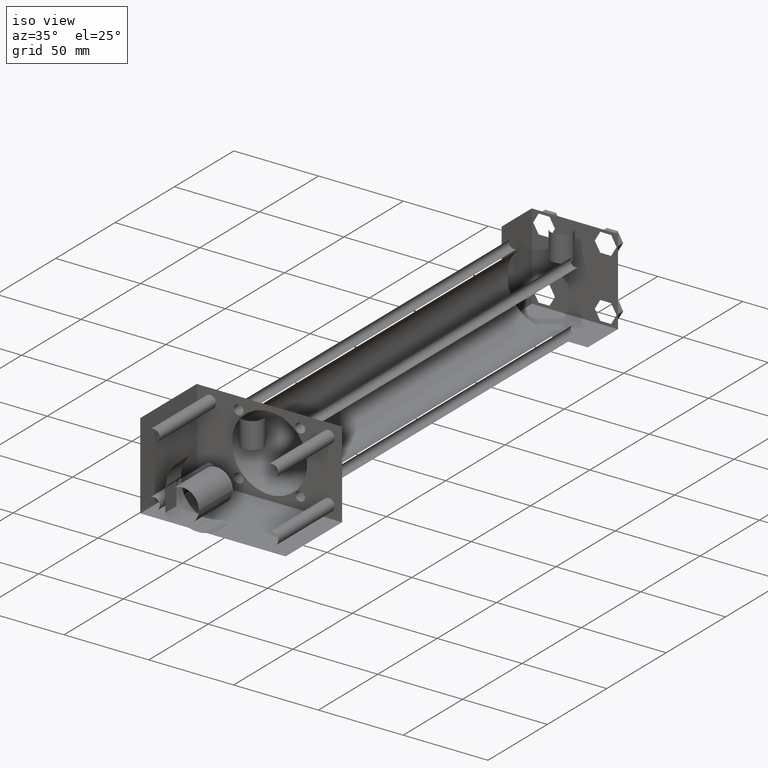
[diagram: clean part render]
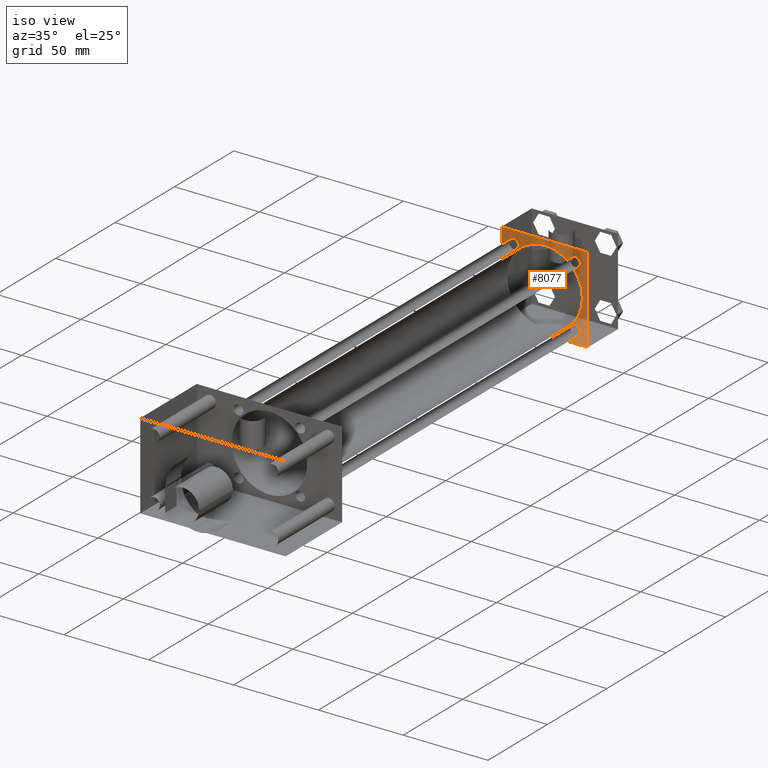
[diagram: same view with one face highlighted and labeled with its STEP entity id]
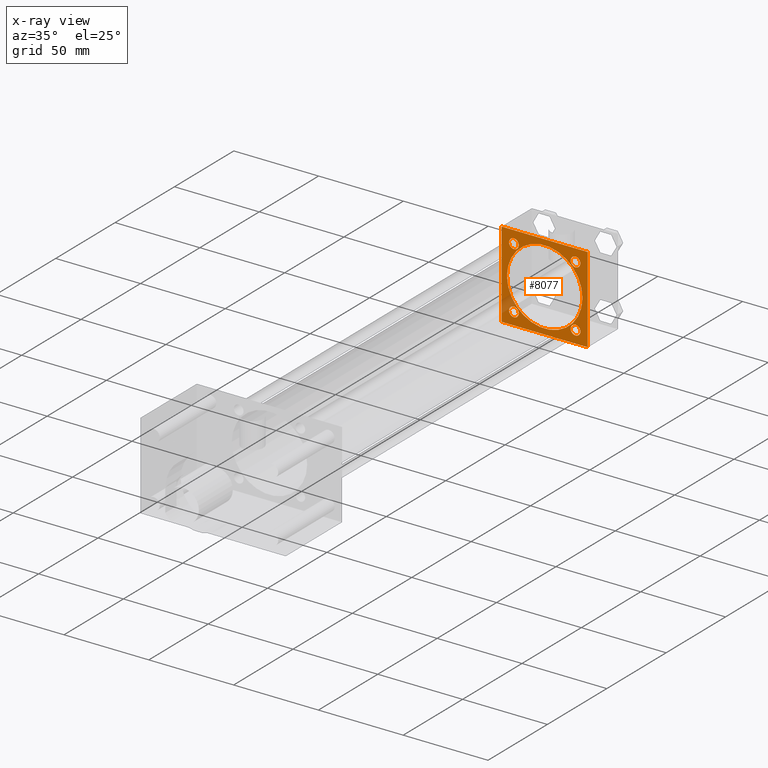
[diagram: x-ray of the same camera — body ghosted, the highlighted face saturated]
A machine part, iso view. The second image highlights one B-rep face of the part: STEP entity #8077.
The next image is the same camera in x-ray: the body ghosted, the highlighted face saturated — about 5% of this face is hidden behind the body in this view.
In plain terms, the highlighted planar face has unit normal (0, 1, 0).
Its self-contained STEP definition (entity closure, byte-faithful):
#1034=EDGE_CURVE('',#1040,#1040,#1035,.T.);
#1035=CIRCLE('',#1036,2.222500000E+001);
#1036=AXIS2_PLACEMENT_3D('',#1037,#1038,#1039);
#1037=CARTESIAN_POINT('',(0.000000000E+000,3.048000000E+002,0.000000000E+000));
#1038=DIRECTION('',(0.0E+000,1.0E+000,0.0E+000));
#1039=DIRECTION('',(1.0E+000,0.0E+000,0.0E+000));
#1040=VERTEX_POINT('',#1041);
#1041=CARTESIAN_POINT('',(2.222500000E+001,3.048000000E+002,0.000000000E+000));
#1116=EDGE_CURVE('',#1122,#1122,#1117,.T.);
#1117=CIRCLE('',#1118,2.857500000E+000);
#1118=AXIS2_PLACEMENT_3D('',#1119,#1120,#1121);
#1119=CARTESIAN_POINT('',(1.816100000E+001,3.048000000E+002,1.816100000E+001));
#1120=DIRECTION('',(0.0E+000,-1.0E+000,0.0E+000));
#1121=DIRECTION('',(-1.0E+000,0.0E+000,0.0E+000));
#1122=VERTEX_POINT('',#1123);
#1123=CARTESIAN_POINT('',(1.530350000E+001,3.048000000E+002,1.816100000E+001));
#1124=EDGE_CURVE('',#1130,#1130,#1125,.T.);
#1125=CIRCLE('',#1126,2.857500000E+000);
#1126=AXIS2_PLACEMENT_3D('',#1127,#1128,#1129);
#1127=CARTESIAN_POINT('',(-1.816100000E+001,3.048000000E+002,-1.816100000E+001));
#1128=DIRECTION('',(0.0E+000,1.0E+000,0.0E+000));
#1129=DIRECTION('',(1.0E+000,0.0E+000,0.0E+000));
#1130=VERTEX_POINT('',#1131);
#1131=CARTESIAN_POINT('',(-1.530350000E+001,3.048000000E+002,-1.816100000E+001));
#1140=EDGE_CURVE('',#1146,#1146,#1141,.T.);
#1141=CIRCLE('',#1142,2.857500000E+000);
#1142=AXIS2_PLACEMENT_3D('',#1143,#1144,#1145);
#1143=CARTESIAN_POINT('',(1.816100000E+001,3.048000000E+002,-1.816100000E+001));
#1144=DIRECTION('',(0.0E+000,1.0E+000,0.0E+000));
#1145=DIRECTION('',(1.0E+000,0.0E+000,0.0E+000));
#1146=VERTEX_POINT('',#1147);
#1147=CARTESIAN_POINT('',(2.101850000E+001,3.048000000E+002,-1.816100000E+001));
#1156=EDGE_CURVE('',#1162,#1162,#1157,.T.);
#1157=CIRCLE('',#1158,2.857500000E+000);
#1158=AXIS2_PLACEMENT_3D('',#1159,#1160,#1161);
#1159=CARTESIAN_POINT('',(-1.816100000E+001,3.048000000E+002,1.816100000E+001));
#1160=DIRECTION('',(0.0E+000,1.0E+000,0.0E+000));
#1161=DIRECTION('',(1.0E+000,0.0E+000,0.0E+000));
#1162=VERTEX_POINT('',#1163);
#1163=CARTESIAN_POINT('',(-1.530350000E+001,3.048000000E+002,1.816100000E+001));
#2335=FACE_OUTER_BOUND('',#2341,.T.);
#2336=FACE_BOUND('',#2342,.T.);
#2337=FACE_BOUND('',#2343,.T.);
#2338=FACE_BOUND('',#2344,.T.);
#2339=FACE_BOUND('',#2345,.T.);
#2340=FACE_BOUND('',#2346,.T.);
#2341=EDGE_LOOP('',(#2347));
#2342=EDGE_LOOP('',(#2348));
#2343=EDGE_LOOP('',(#2357));
#2344=EDGE_LOOP('',(#2366));
#2345=EDGE_LOOP('',(#2375,#2376,#2377,#2378));
#2346=EDGE_LOOP('',(#2407));
#2347=ORIENTED_EDGE('',*,*,#1034,.T.);
#2348=ORIENTED_EDGE('',*,*,#1156,.T.);
#2357=ORIENTED_EDGE('',*,*,#1140,.T.);
#2366=ORIENTED_EDGE('',*,*,#1124,.T.);
#2375=ORIENTED_EDGE('',*,*,#2379,.T.);
#2376=ORIENTED_EDGE('',*,*,#2388,.T.);
#2377=ORIENTED_EDGE('',*,*,#2395,.T.);
#2378=ORIENTED_EDGE('',*,*,#2402,.T.);
#2379=EDGE_CURVE('',#2384,#2385,#2380,.T.);
#2380=LINE('',#2381,#2382);
#2381=CARTESIAN_POINT('',(-2.540000000E+001,3.048000000E+002,-2.540000000E+001));
#2382=VECTOR('',#2383,1.0E+000);
#2383=DIRECTION('',(1.0E+000,0.0E+000,0.0E+000));
#2384=VERTEX_POINT('',#2386);
#2385=VERTEX_POINT('',#2387);
#2386=CARTESIAN_POINT('',(-2.540000000E+001,3.048000000E+002,-2.540000000E+001));
#2387=CARTESIAN_POINT('',(2.540000000E+001,3.048000000E+002,-2.540000000E+001));
#2388=EDGE_CURVE('',#2385,#2393,#2389,.T.);
#2389=LINE('',#2390,#2391);
#2390=CARTESIAN_POINT('',(2.540000000E+001,3.048000000E+002,-2.540000000E+001));
#2391=VECTOR('',#2392,1.0E+000);
#2392=DIRECTION('',(0.0E+000,0.0E+000,1.0E+000));
#2393=VERTEX_POINT('',#2394);
#2394=CARTESIAN_POINT('',(2.540000000E+001,3.048000000E+002,2.540000000E+001));
#2395=EDGE_CURVE('',#2393,#2400,#2396,.T.);
#2396=LINE('',#2397,#2398);
#2397=CARTESIAN_POINT('',(2.540000000E+001,3.048000000E+002,2.540000000E+001));
#2398=VECTOR('',#2399,1.0E+000);
#2399=DIRECTION('',(-1.0E+000,0.0E+000,0.0E+000));
#2400=VERTEX_POINT('',#2401);
#2401=CARTESIAN_POINT('',(-2.540000000E+001,3.048000000E+002,2.540000000E+001));
#2402=EDGE_CURVE('',#2400,#2384,#2403,.T.);
#2403=LINE('',#2404,#2405);
#2404=CARTESIAN_POINT('',(-2.540000000E+001,3.048000000E+002,2.540000000E+001));
#2405=VECTOR('',#2406,1.0E+000);
#2406=DIRECTION('',(0.0E+000,0.0E+000,-1.0E+000));
#2407=ORIENTED_EDGE('',*,*,#1116,.F.);
#2416=PLANE('',#2417);
#2417=AXIS2_PLACEMENT_3D('',#2418,#2419,#2420);
#2418=CARTESIAN_POINT('',(-2.540000000E+001,3.048000000E+002,-2.540000000E+001));
#2419=DIRECTION('',(0.0E+000,1.0E+000,0.0E+000));
#2420=DIRECTION('',(0.0E+000,0.0E+000,1.0E+000));
#8077=ADVANCED_FACE('',(#2335,#2336,#2337,#2338,#2339,#2340),#2416,.F.);